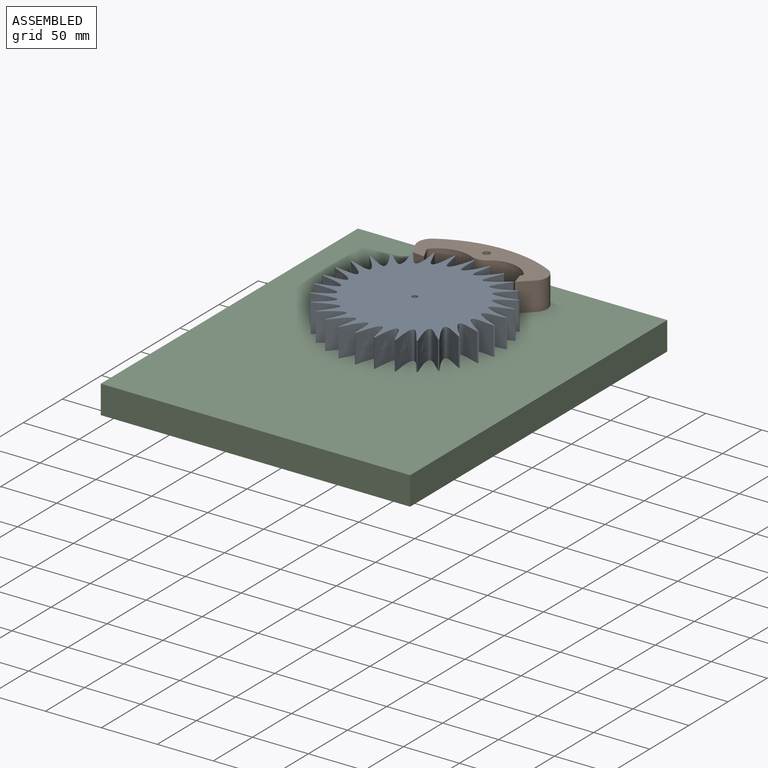
[diagram: assembled view]
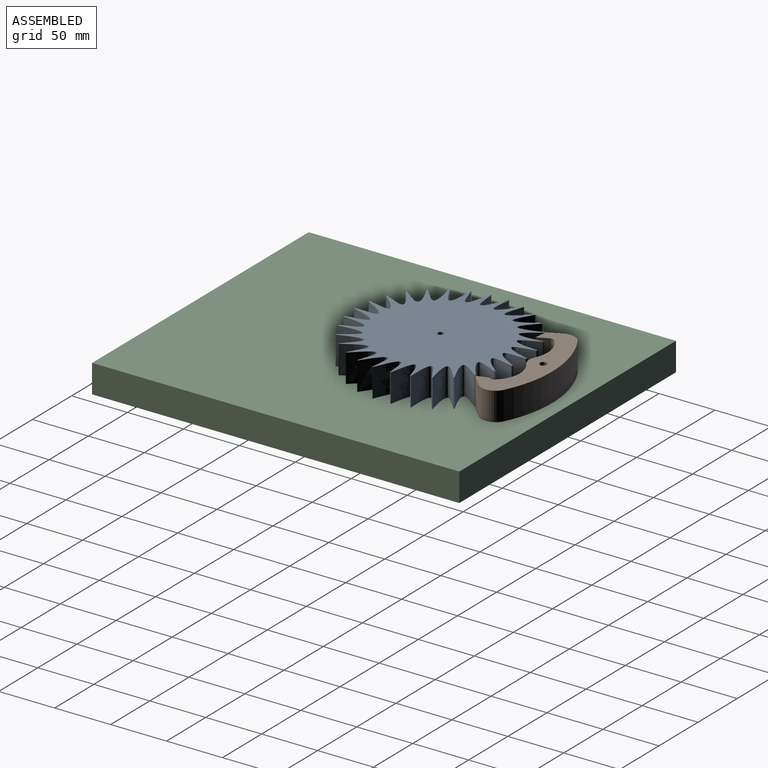
[diagram: assembled view, second angle]
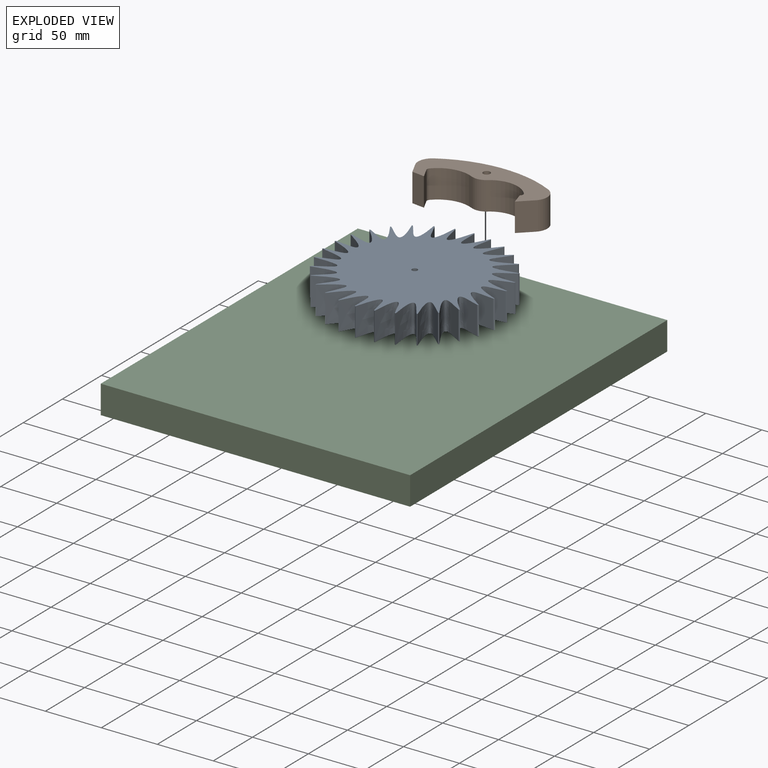
[diagram: exploded view]
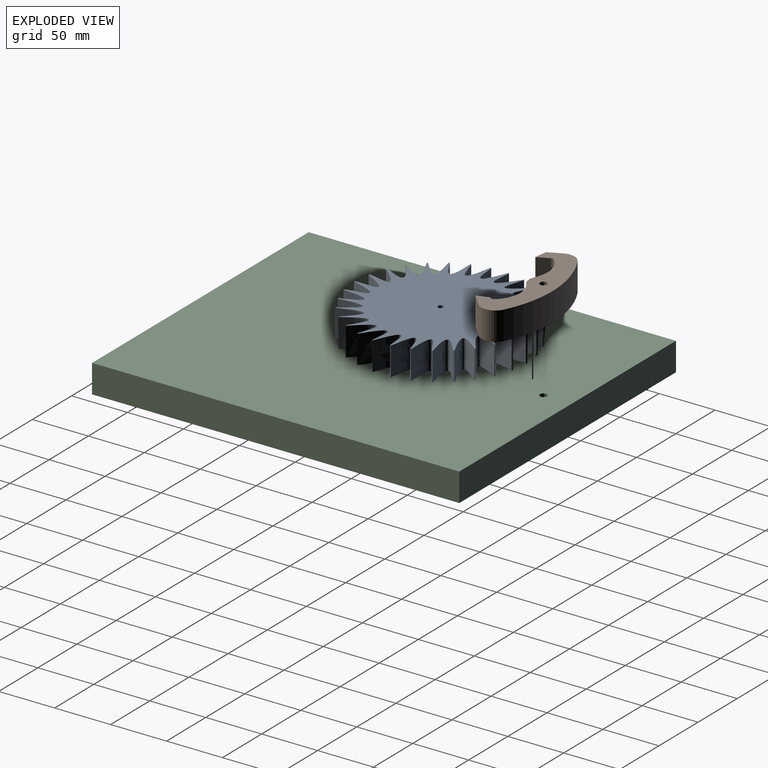
[diagram: exploded view, second angle]
ASSEMBLY  parts=3 mates=4
PART A: 93 faces, bbox 154x153.3x25.4 mm
  f0: extruded ~25.4x20.7mm, area 767.9mm2, adj f1,f90,f91,f92
  f1: plane 25.4x12.42mm, normal (0.21,-0.98,0), area 322.6mm2, adj f0,f2,f91,f92
  f2: plane 25.4x0.93mm, normal (0.84,-0.54,0), area 28.1mm2, adj f1,f3,f91,f92
  f3: extruded ~25.4x22.2mm, area 767.9mm2, adj f2,f4,f91,f92
  f4: plane 25.4x11.6mm, normal (0.41,-0.91,0), area 322.6mm2, adj f3,f5,f91,f92
  f5: plane 25.4x1.03mm, normal (0.93,-0.36,0), area 28.1mm2, adj f4,f6,f91,f92
  f6: extruded ~25.4x22.78mm, area 767.9mm2, adj f5,f7,f91,f92
  f7: plane 25.4x10.27mm, normal (0.59,-0.81,0), area 322.6mm2, adj f6,f8,f91,f92
  f8: plane 25.4x1.09mm, normal (0.99,-0.16,0), area 28.1mm2, adj f7,f9,f91,f92
  f9: extruded ~25.4x22.44mm, area 767.9mm2, adj f8,f10,f91,f92
  f10: plane 25.4x9.44mm, normal (0.74,-0.67,0), area 322.6mm2, adj f9,f11,f91,f92
  f11: plane 25.4x1.1mm, normal (1,0.05,0), area 28.1mm2, adj f10,f12,f91,f92
  f12: extruded ~25.4x21.19mm, area 767.9mm2, adj f11,f13,f91,f92
  f13: plane 25.4x11mm, normal (0.87,-0.5,0), area 322.6mm2, adj f12,f14,f91,f92
  f14: plane 25.4x1.07mm, normal (0.97,0.26,0), area 28.1mm2, adj f13,f15,f91,f92
  f15: extruded ~25.4x19.16mm, area 767.9mm2, adj f14,f16,f91,f92
  f16: plane 25.4x12.08mm, normal (0.95,-0.31,0), area 322.6mm2, adj f15,f17,f91,f92
  f17: plane 25.4x0.99mm, normal (0.89,0.45,0), area 28.1mm2, adj f16,f18,f91,f92
  f18: extruded ~25.4x16.89mm, area 767.9mm2, adj f17,f19,f91,f92
  f19: plane 25.4x12.63mm, normal (0.99,-0.1,0), area 322.6mm2, adj f18,f20,f91,f92
  f20: plane 25.4x0.86mm, normal (0.78,0.63,0), area 28.1mm2, adj f19,f21,f91,f92
  f21: extruded ~25.4x19.62mm, area 767.9mm2, adj f20,f22,f91,f92
  f22: plane 25.4x12.63mm, normal (0.99,0.1,0), area 322.6mm2, adj f21,f23,f91,f92
  f23: plane 25.4x0.86mm, normal (0.63,0.78,0), area 28.1mm2, adj f22,f24,f91,f92
  f24: extruded ~25.4x21.56mm, area 767.9mm2, adj f23,f25,f91,f92
  f25: plane 25.4x12.08mm, normal (0.95,0.31,0), area 322.6mm2, adj f24,f26,f91,f92
  f26: plane 25.4x0.99mm, normal (0.45,0.89,0), area 28.1mm2, adj f25,f27,f91,f92
  f27: extruded ~25.4x22.62mm, area 767.9mm2, adj f26,f28,f91,f92
  f28: plane 25.4x11mm, normal (0.87,0.5,0), area 322.6mm2, adj f27,f29,f91,f92
  f29: plane 25.4x1.07mm, normal (0.26,0.97,0), area 28.1mm2, adj f28,f30,f91,f92
  f30: extruded ~25.4x22.73mm, area 767.9mm2, adj f29,f31,f91,f92
  f31: plane 25.4x9.44mm, normal (0.74,0.67,0), area 322.6mm2, adj f30,f32,f91,f92
  f32: plane 25.4x1.1mm, normal (0.05,1,0), area 28.1mm2, adj f31,f33,f91,f92
  f33: extruded ~25.4x21.93mm, area 767.9mm2, adj f32,f34,f91,f92
  f34: plane 25.4x10.27mm, normal (0.59,0.81,0), area 322.6mm2, adj f33,f35,f91,f92
  f35: plane 25.4x1.09mm, normal (-0.16,0.99,0), area 28.1mm2, adj f34,f36,f91,f92
  f36: extruded ~25.4x20.27mm, area 767.9mm2, adj f35,f37,f91,f92
  f37: plane 25.4x11.6mm, normal (0.41,0.91,0), area 322.6mm2, adj f36,f38,f91,f92
  f38: plane 25.4x1.03mm, normal (-0.36,0.93,0), area 28.1mm2, adj f37,f39,f91,f92
  f39: extruded ~25.4x17.91mm, area 767.9mm2, adj f38,f40,f91,f92
  f40: plane 25.4x12.42mm, normal (0.21,0.98,0), area 322.6mm2, adj f39,f41,f91,f92
  f41: plane 25.4x0.93mm, normal (-0.54,0.84,0), area 28.1mm2, adj f40,f42,f91,f92
  f42: extruded ~25.4x18.35mm, area 767.9mm2, adj f41,f43,f91,f92
  f43: plane 25.4x12.7mm, normal (0,1,0), area 322.6mm2, adj f42,f44,f91,f92
  f44: plane 25.4x0.78mm, normal (-0.71,0.71,0), area 28.1mm2, adj f43,f45,f91,f92
  f45: extruded ~25.4x20.7mm, area 767.9mm2, adj f44,f46,f91,f92
  f46: plane 25.4x12.42mm, normal (-0.21,0.98,0), area 322.6mm2, adj f45,f47,f91,f92
  f47: plane 25.4x0.93mm, normal (-0.84,0.54,0), area 28.1mm2, adj f46,f48,f91,f92
  f48: extruded ~25.4x22.2mm, area 767.9mm2, adj f47,f49,f91,f92
  f49: plane 25.4x11.6mm, normal (-0.41,0.91,0), area 322.6mm2, adj f48,f50,f91,f92
  f50: plane 25.4x1.03mm, normal (-0.93,0.36,0), area 28.1mm2, adj f49,f51,f91,f92
  f51: extruded ~25.4x22.78mm, area 767.9mm2, adj f50,f52,f91,f92
  f52: plane 25.4x10.27mm, normal (-0.59,0.81,0), area 322.6mm2, adj f51,f53,f91,f92
  f53: plane 25.4x1.09mm, normal (-0.99,0.16,0), area 28.1mm2, adj f52,f54,f91,f92
  f54: extruded ~25.4x22.44mm, area 767.9mm2, adj f53,f55,f91,f92
  f55: plane 25.4x9.44mm, normal (-0.74,0.67,0), area 322.6mm2, adj f54,f56,f91,f92
  f56: plane 25.4x1.1mm, normal (-1,-0.05,0), area 28.1mm2, adj f55,f57,f91,f92
  f57: extruded ~25.4x21.19mm, area 767.9mm2, adj f56,f58,f91,f92
  f58: plane 25.4x11mm, normal (-0.87,0.5,0), area 322.6mm2, adj f57,f59,f91,f92
  f59: plane 25.4x1.07mm, normal (-0.97,-0.26,0), area 28.1mm2, adj f58,f60,f91,f92
  f60: extruded ~25.4x19.16mm, area 767.9mm2, adj f59,f61,f91,f92
  f61: plane 25.4x12.08mm, normal (-0.95,0.31,0), area 322.6mm2, adj f60,f62,f91,f92
  f62: plane 25.4x0.99mm, normal (-0.89,-0.45,0), area 28.1mm2, adj f61,f63,f91,f92
  f63: extruded ~25.4x16.89mm, area 767.9mm2, adj f62,f64,f91,f92
  f64: plane 25.4x12.63mm, normal (-0.99,0.1,0), area 322.6mm2, adj f63,f65,f91,f92
  f65: plane 25.4x0.86mm, normal (-0.78,-0.63,0), area 28.1mm2, adj f64,f66,f91,f92
  f66: extruded ~25.4x19.62mm, area 767.9mm2, adj f65,f67,f91,f92
  f67: plane 25.4x12.63mm, normal (-0.99,-0.1,0), area 322.6mm2, adj f66,f68,f91,f92
  f68: plane 25.4x0.86mm, normal (-0.63,-0.78,0), area 28.1mm2, adj f67,f69,f91,f92
  f69: extruded ~25.4x21.56mm, area 767.9mm2, adj f68,f70,f91,f92
  f70: plane 25.4x12.08mm, normal (-0.95,-0.31,0), area 322.6mm2, adj f69,f71,f91,f92
  f71: plane 25.4x0.99mm, normal (-0.45,-0.89,0), area 28.1mm2, adj f70,f72,f91,f92
  f72: extruded ~25.4x22.62mm, area 767.9mm2, adj f71,f73,f91,f92
  f73: plane 25.4x11mm, normal (-0.87,-0.5,0), area 322.6mm2, adj f72,f74,f91,f92
  f74: plane 25.4x1.07mm, normal (-0.26,-0.97,0), area 28.1mm2, adj f73,f75,f91,f92
  f75: extruded ~25.4x22.73mm, area 767.9mm2, adj f74,f76,f91,f92
  f76: plane 25.4x9.44mm, normal (-0.74,-0.67,0), area 322.6mm2, adj f75,f77,f91,f92
  f77: plane 25.4x1.1mm, normal (-0.05,-1,0), area 28.1mm2, adj f76,f78,f91,f92
  f78: extruded ~25.4x21.93mm, area 767.9mm2, adj f77,f79,f91,f92
  f79: plane 25.4x10.27mm, normal (-0.59,-0.81,0), area 322.6mm2, adj f78,f80,f91,f92
  f80: plane 25.4x1.09mm, normal (0.16,-0.99,0), area 28.1mm2, adj f79,f81,f91,f92
  f81: extruded ~25.4x20.27mm, area 767.9mm2, adj f80,f82,f91,f92
  f82: plane 25.4x11.6mm, normal (-0.41,-0.91,0), area 322.6mm2, adj f81,f83,f91,f92
  f83: plane 25.4x1.03mm, normal (0.36,-0.93,0), area 28.1mm2, adj f82,f84,f91,f92
  f84: extruded ~25.4x17.91mm, area 767.9mm2, adj f83,f85,f91,f92
  f85: plane 25.4x12.42mm, normal (-0.21,-0.98,0), area 322.6mm2, adj f84,f86,f91,f92
  f86: plane 25.4x0.93mm, normal (0.54,-0.84,0), area 28.1mm2, adj f85,f87,f91,f92
  f87: extruded ~25.4x18.35mm, area 767.9mm2, adj f86,f88,f91,f92
  f88: plane 25.4x12.7mm, normal (0,-1,0), area 322.6mm2, adj f87,f90,f91,f92
  f89: cylinder r=2.5mm len=25.4mm, axis (0,0,-1), area 399mm2, adj f91,f92
  f90: plane 25.4x0.78mm, normal (0.71,-0.71,0), area 28.1mm2, adj f0,f88,f91,f92
  f91: plane 153.96x153.28mm, normal (0,0,1), area 12743.6mm2, adj f0,f1,f2,f3,f4,f5,f6,f7
  f92: plane 153.96x153.28mm, normal (0,0,-1), area 12743.6mm2, adj f0,f1,f2,f3,f4,f5,f6,f7
PART B: 17 faces, bbox 113x45.2x25.4 mm
  f0: plane 25.4x0.26mm, normal (-0.63,0.78,0), area 8.6mm2, adj f1,f14,f15,f16
  f1: plane 25.4x11.19mm, normal (-0.98,-0.21,0), area 290.7mm2, adj f0,f2,f15,f16
  f2: plane 25.4x11.97mm, normal (0.63,-0.78,0), area 391.3mm2, adj f1,f3,f15,f16
  f3: cylinder r=12.7mm len=25.4mm, axis (0,0,-1), area 620.3mm2, adj f2,f4,f15,f16
  f4: cylinder r=104.49mm len=99.72mm, axis (0,0,-1), area 2642.7mm2, adj f3,f5,f15,f16
  f5: cylinder r=12.7mm len=25.4mm, axis (0,0,-1), area 477.3mm2, adj f4,f6,f15,f16
  f6: plane 25.4x11.98mm, normal (-0.93,-0.36,0), area 325.9mm2, adj f5,f7,f15,f16
  f7: plane 25.4x11.19mm, normal (-0.21,-0.98,0), area 290.7mm2, adj f6,f8,f15,f16
  f8: plane 25.4x10.39mm, normal (0.93,0.36,0), area 282.6mm2, adj f7,f9,f15,f16
  f9: cylinder r=3.17mm len=25.4mm, axis (0,0,-1), area 97.2mm2, adj f8,f10,f15,f16
  f10: cylinder r=28.57mm len=33.79mm, axis (0,0,-1), area 923.1mm2, adj f9,f11,f15,f16
  f11: cylinder r=12.7mm len=25.4mm, axis (0,0,-1), area 316.7mm2, adj f10,f12,f15,f16
  f12: cylinder r=25.42mm len=35.52mm, axis (0,0,-1), area 1014.6mm2, adj f11,f14,f15,f16
  f13: cylinder r=3.17mm len=25.4mm, axis (0,0,-1), area 506.7mm2, adj f15,f16
  f14: cylinder r=3.17mm len=25.4mm, axis (0,0,-1), area 122.5mm2, adj f0,f12,f15,f16
  f15: plane 113x45.23mm, normal (0,0,1), area 2335.3mm2, adj f0,f1,f2,f3,f4,f5,f6,f7
  f16: plane 113x45.23mm, normal (0,0,-1), area 2335.3mm2, adj f0,f1,f2,f3,f4,f5,f6,f7
PART C: 8 faces, bbox 276.5x328.2x25.4 mm
  f0: plane 328.21x25.4mm, normal (-1,0,0), area 8336.5mm2, adj f1,f5,f6,f7
  f1: plane 276.54x25.4mm, normal (0,-1,0), area 7024.1mm2, adj f0,f2,f6,f7
  f2: plane 328.21x25.4mm, normal (1,0,0), area 8336.5mm2, adj f1,f5,f6,f7
  f3: cylinder r=3.17mm len=25.4mm, axis (0,0,1), area 506.7mm2, adj f6,f7
  f4: cylinder r=2.5mm len=25.4mm, axis (0,0,1), area 399mm2, adj f6,f7
  f5: plane 276.54x25.4mm, normal (0,1,0), area 7024.1mm2, adj f0,f2,f6,f7
  f6: plane 328.21x276.54mm, normal (0,0,-1), area 90711.3mm2, adj f0,f1,f2,f3,f4,f5
  f7: plane 328.21x276.54mm, normal (0,0,1), area 90711.3mm2, adj f0,f1,f2,f3,f4,f5
PLACE A rot(axis=(0,0,-1),66.1deg) t=(0,0,0)mm
PLACE B rot(axis=(0,0,1),4.5deg) t=(7.28,0.29,0)mm
PLACE C at identity fixed
MATE planar B.f4 <-> C.f7  axis (0,0,-1) through (7.28,0.29,0)mm
MATE cylindrical A.f89 <-> C.f4  axis (0,0,1) through (0,0,25.4)mm
MATE cylindrical B.f11 <-> C.f3  axis (0,0,-1) through (0,91.79,12.7)mm
MATE planar C.f7 <-> A.f89  axis (0,0,1) through (5.38,-46.97,0)mm
